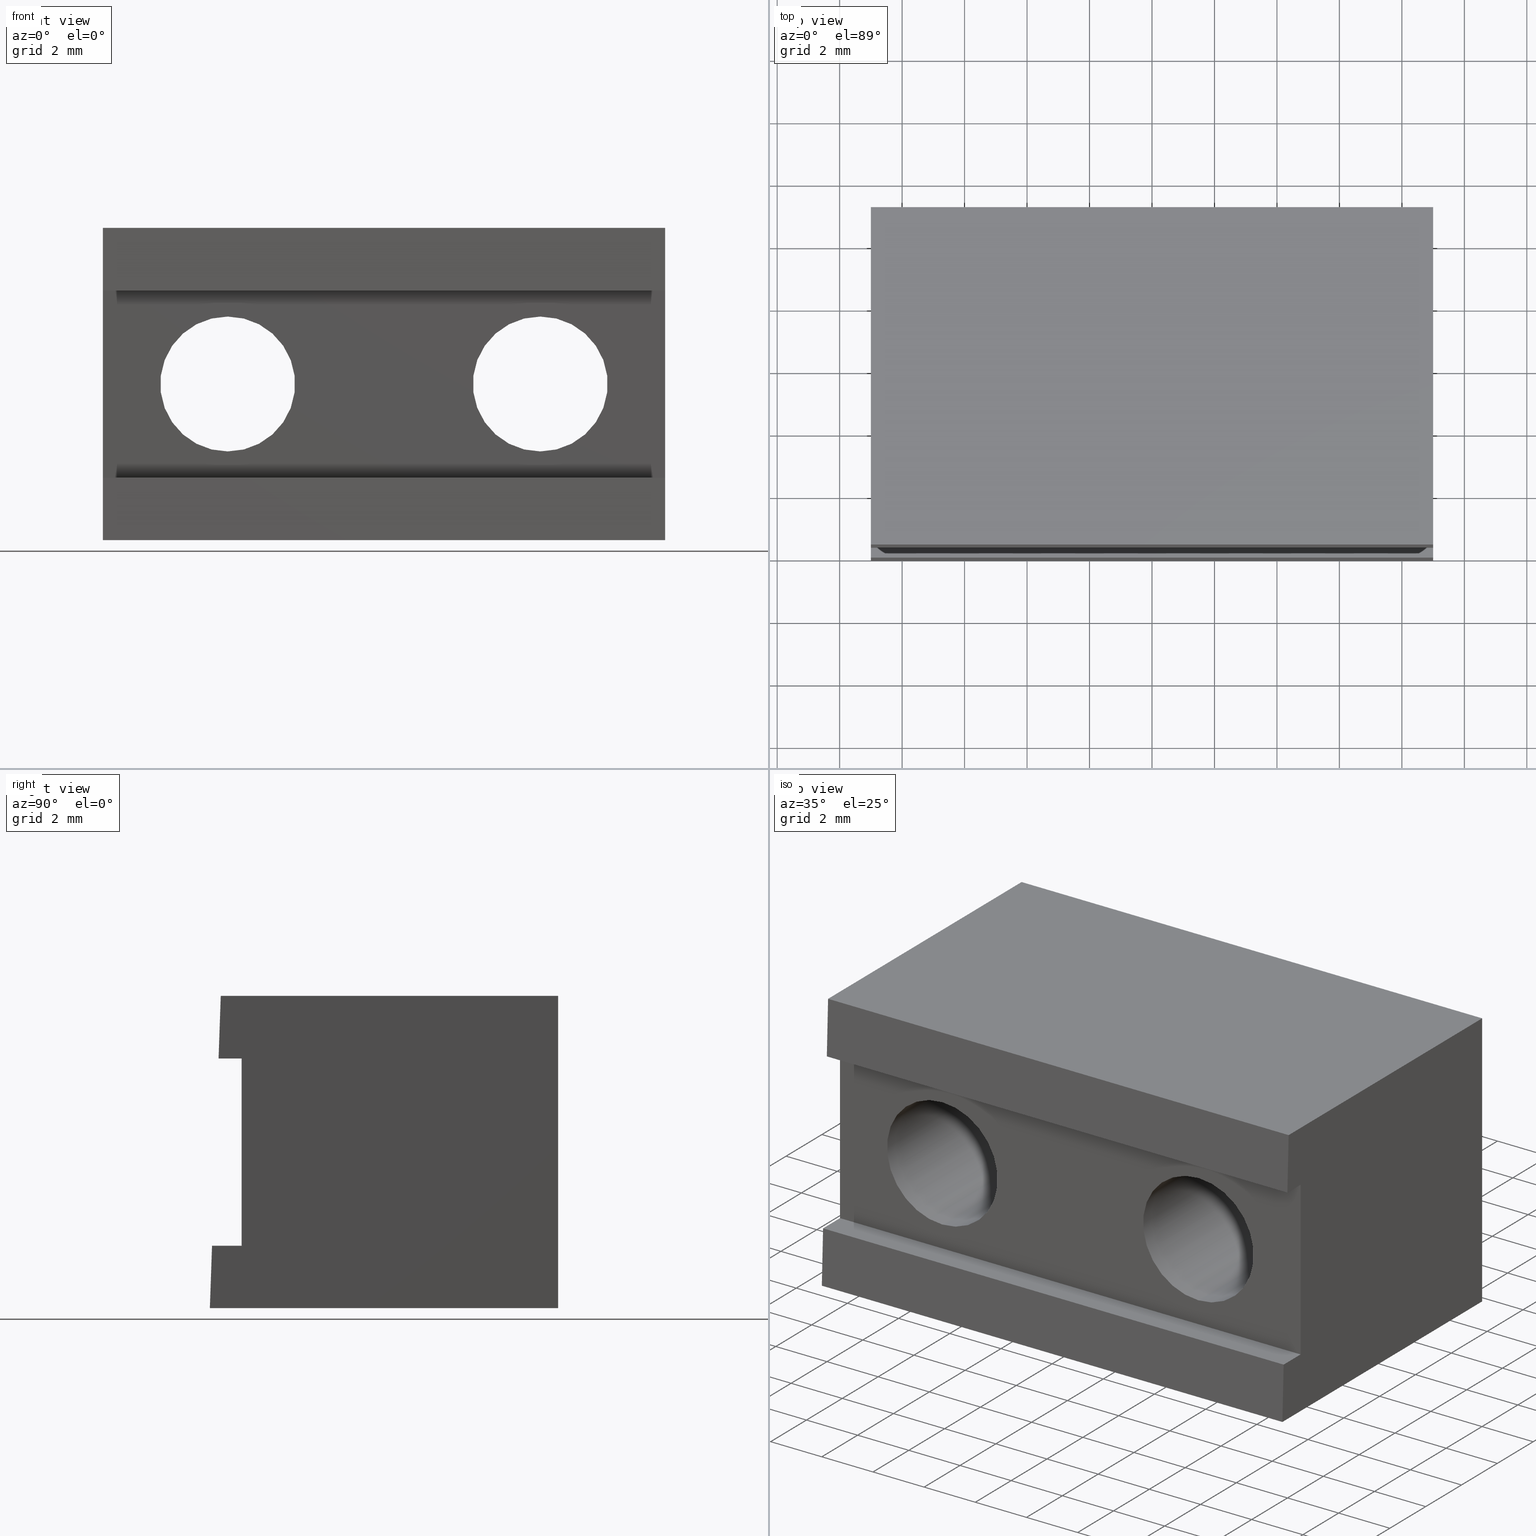
[diagram: canonical four-view strip — front | top / right | iso, engineering-drawing reading convention]
A machine part, canonical four-view strip (front | top / right | iso — engineering-drawing reading convention). The complete STEP part file that produces these views, byte-faithful:
ISO-10303-21;
HEADER;
FILE_DESCRIPTION (( 'STEP AP203' ),
    '1' );
FILE_NAME ('D020314-v2_aLIGO_SUS_HSTS_Lower Blade Clamp, Upper SIde, Angled 2.0.STEP',
    '2010-06-25T13:28:48',
    ( 'Dwayne Giardina' ),
    ( 'CA Institute of Technology' ),
    'SwSTEP 2.0',
    'SolidWorks 2009',
    '' );
FILE_SCHEMA (( 'CONFIG_CONTROL_DESIGN' ));
ENDSEC;

DATA;
#1 = PRODUCT ( 'D020314-v2_aLIGO_SUS_HSTS_Lower Blade Clamp, Upper SIde, Angled 2.0', 'D020314-v2_aLIGO_SUS_HSTS_Lower Blade Clamp, Upper SIde, Angled 2.0', '', ( #486 ) ) ;
#2 = PERSON ( 'UNSPECIFIED', 'UNSPECIFIED', 'UNSPECIFIED', ('UNSPECIFIED'), ('UNSPECIFIED'), ('UNSPECIFIED') ) ;
#3 = ORIENTED_EDGE ( 'NONE', *, *, #135, .F. ) ;
#4 = ORIENTED_EDGE ( 'NONE', *, *, #345, .F. ) ;
#5 = ORIENTED_EDGE ( 'NONE', *, *, #141, .T. ) ;
#6 = ORIENTED_EDGE ( 'NONE', *, *, #163, .T. ) ;
#7 = ORIENTED_EDGE ( 'NONE', *, *, #171, .T. ) ;
#8 = ORIENTED_EDGE ( 'NONE', *, *, #157, .T. ) ;
#9 = VECTOR ( 'NONE', #320, 39.37007874015748100 ) ;
#10 = ORIENTED_EDGE ( 'NONE', *, *, #180, .F. ) ;
#11 = EDGE_LOOP ( 'NONE', ( #6, #72, #110, #5 ) ) ;
#12 = ORIENTED_EDGE ( 'NONE', *, *, #187, .T. ) ;
#13 = ORIENTED_EDGE ( 'NONE', *, *, #342, .F. ) ;
#14 = VECTOR ( 'NONE', #360, 39.37007874015748100 ) ;
#15 = ORIENTED_EDGE ( 'NONE', *, *, #340, .F. ) ;
#16 = ORIENTED_EDGE ( 'NONE', *, *, #148, .T. ) ;
#17 = LINE ( 'NONE', #351, #26 ) ;
#18 = VECTOR ( 'NONE', #507, 39.37007874015748100 ) ;
#19 = ORIENTED_EDGE ( 'NONE', *, *, #170, .T. ) ;
#20 = ORIENTED_EDGE ( 'NONE', *, *, #152, .F. ) ;
#21 = ORIENTED_EDGE ( 'NONE', *, *, #197, .F. ) ;
#22 = ORIENTED_EDGE ( 'NONE', *, *, #346, .F. ) ;
#23 = EDGE_LOOP ( 'NONE', ( #94, #107 ) ) ;
#24 = EDGE_LOOP ( 'NONE', ( #30, #27, #104, #101 ) ) ;
#25 = ORIENTED_EDGE ( 'NONE', *, *, #342, .T. ) ;
#26 = VECTOR ( 'NONE', #352, 39.37007874015748100 ) ;
#27 = ORIENTED_EDGE ( 'NONE', *, *, #345, .T. ) ;
#28 = ORIENTED_EDGE ( 'NONE', *, *, #162, .F. ) ;
#29 = ORIENTED_EDGE ( 'NONE', *, *, #187, .F. ) ;
#30 = ORIENTED_EDGE ( 'NONE', *, *, #162, .T. ) ;
#31 = VECTOR ( 'NONE', #327, 39.37007874015748100 ) ;
#32 = VECTOR ( 'NONE', #338, 39.37007874015748100 ) ;
#33 = EDGE_LOOP ( 'NONE', ( #74, #105, #41, #128 ) ) ;
#34 = CLOSED_SHELL ( 'NONE', ( #299, #303, #301, #289, #291, #300, #292, #297, #302, #298, #296, #293, #294, #295 ) ) ;
#35 = ORIENTED_EDGE ( 'NONE', *, *, #142, .T. ) ;
#36 = ORIENTED_EDGE ( 'NONE', *, *, #189, .F. ) ;
#37 = EDGE_LOOP ( 'NONE', ( #47, #43, #3, #69, #56, #28, #48, #121 ) ) ;
#38 = CIRCLE ( 'NONE', #173, 0.08499999999999999200 ) ;
#39 = ORIENTED_EDGE ( 'NONE', *, *, #341, .T. ) ;
#40 = ORIENTED_EDGE ( 'NONE', *, *, #156, .T. ) ;
#41 = ORIENTED_EDGE ( 'NONE', *, *, #193, .T. ) ;
#42 = ORIENTED_EDGE ( 'NONE', *, *, #341, .F. ) ;
#43 = ORIENTED_EDGE ( 'NONE', *, *, #148, .F. ) ;
#44 = VECTOR ( 'NONE', #364, 39.37007874015748100 ) ;
#45 = ORIENTED_EDGE ( 'NONE', *, *, #141, .F. ) ;
#46 = ORIENTED_EDGE ( 'NONE', *, *, #166, .F. ) ;
#47 = ORIENTED_EDGE ( 'NONE', *, *, #184, .F. ) ;
#48 = ORIENTED_EDGE ( 'NONE', *, *, #170, .F. ) ;
#49 = CIRCLE ( 'NONE', #140, 0.08499999999999997800 ) ;
#50 = EDGE_LOOP ( 'NONE', ( #35, #81, #66, #4 ) ) ;
#51 = EDGE_LOOP ( 'NONE', ( #97, #40, #112, #42 ) ) ;
#52 = EDGE_LOOP ( 'NONE', ( #70, #22 ) ) ;
#53 = VECTOR ( 'NONE', #363, 39.37007874015748100 ) ;
#54 = LINE ( 'NONE', #506, #18 ) ;
#55 = LINE ( 'NONE', #365, #44 ) ;
#56 = ORIENTED_EDGE ( 'NONE', *, *, #142, .F. ) ;
#57 = ORIENTED_EDGE ( 'NONE', *, *, #171, .F. ) ;
#58 = CIRCLE ( 'NONE', #136, 0.08499999999999999200 ) ;
#59 = EDGE_LOOP ( 'NONE', ( #19, #124, #113, #45 ) ) ;
#60 = LINE ( 'NONE', #520, #79 ) ;
#61 = VECTOR ( 'NONE', #380, 39.37007874015748100 ) ;
#62 = ORIENTED_EDGE ( 'NONE', *, *, #344, .F. ) ;
#63 = ORIENTED_EDGE ( 'NONE', *, *, #340, .T. ) ;
#64 = ORIENTED_EDGE ( 'NONE', *, *, #184, .T. ) ;
#65 = ORIENTED_EDGE ( 'NONE', *, *, #163, .F. ) ;
#66 = ORIENTED_EDGE ( 'NONE', *, *, #134, .T. ) ;
#67 = ORIENTED_EDGE ( 'NONE', *, *, #347, .F. ) ;
#68 = ORIENTED_EDGE ( 'NONE', *, *, #152, .T. ) ;
#69 = ORIENTED_EDGE ( 'NONE', *, *, #191, .T. ) ;
#70 = ORIENTED_EDGE ( 'NONE', *, *, #154, .F. ) ;
#71 = LINE ( 'NONE', #517, #123 ) ;
#72 = ORIENTED_EDGE ( 'NONE', *, *, #155, .T. ) ;
#73 = LINE ( 'NONE', #358, #77 ) ;
#74 = ORIENTED_EDGE ( 'NONE', *, *, #166, .T. ) ;
#75 = LINE ( 'NONE', #308, #32 ) ;
#76 = LINE ( 'NONE', #381, #84 ) ;
#77 = VECTOR ( 'NONE', #354, 39.37007874015748100 ) ;
#78 = EDGE_LOOP ( 'NONE', ( #16, #68, #25, #63 ) ) ;
#79 = VECTOR ( 'NONE', #519, 39.37007874015748100 ) ;
#80 = LINE ( 'NONE', #353, #53 ) ;
#81 = ORIENTED_EDGE ( 'NONE', *, *, #347, .T. ) ;
#82 = VECTOR ( 'NONE', #335, 39.37007874015748100 ) ;
#83 = LINE ( 'NONE', #321, #85 ) ;
#84 = VECTOR ( 'NONE', #382, 39.37007874015748100 ) ;
#85 = VECTOR ( 'NONE', #322, 39.37007874015748100 ) ;
#86 = LINE ( 'NONE', #326, #82 ) ;
#87 = LINE ( 'NONE', #379, #61 ) ;
#88 = ORIENTED_EDGE ( 'NONE', *, *, #177, .F. ) ;
#89 = ORIENTED_EDGE ( 'NONE', *, *, #155, .F. ) ;
#90 = ORIENTED_EDGE ( 'NONE', *, *, #134, .F. ) ;
#91 = ORIENTED_EDGE ( 'NONE', *, *, #135, .T. ) ;
#92 = ORIENTED_EDGE ( 'NONE', *, *, #193, .F. ) ;
#93 = LINE ( 'NONE', #339, #9 ) ;
#94 = ORIENTED_EDGE ( 'NONE', *, *, #343, .F. ) ;
#95 = LINE ( 'NONE', #324, #102 ) ;
#96 = LINE ( 'NONE', #511, #275 ) ;
#97 = ORIENTED_EDGE ( 'NONE', *, *, #343, .T. ) ;
#98 = EDGE_LOOP ( 'NONE', ( #67, #129, #57, #10 ) ) ;
#99 = EDGE_LOOP ( 'NONE', ( #90, #119, #118, #13, #29, #65, #21, #111 ) ) ;
#100 = EDGE_LOOP ( 'NONE', ( #36, #92 ) ) ;
#101 = ORIENTED_EDGE ( 'NONE', *, *, #159, .F. ) ;
#102 = VECTOR ( 'NONE', #329, 39.37007874015748100 ) ;
#103 = ORIENTED_EDGE ( 'NONE', *, *, #160, .F. ) ;
#104 = ORIENTED_EDGE ( 'NONE', *, *, #161, .T. ) ;
#105 = ORIENTED_EDGE ( 'NONE', *, *, #344, .T. ) ;
#106 = ORIENTED_EDGE ( 'NONE', *, *, #156, .F. ) ;
#107 = ORIENTED_EDGE ( 'NONE', *, *, #157, .F. ) ;
#108 = ORIENTED_EDGE ( 'NONE', *, *, #177, .T. ) ;
#109 = EDGE_LOOP ( 'NONE', ( #62, #108, #127, #126 ) ) ;
#110 = ORIENTED_EDGE ( 'NONE', *, *, #196, .T. ) ;
#111 = ORIENTED_EDGE ( 'NONE', *, *, #161, .F. ) ;
#112 = ORIENTED_EDGE ( 'NONE', *, *, #346, .T. ) ;
#113 = ORIENTED_EDGE ( 'NONE', *, *, #197, .T. ) ;
#114 = EDGE_LOOP ( 'NONE', ( #64, #89, #12, #20 ) ) ;
#115 = LINE ( 'NONE', #359, #14 ) ;
#116 = LINE ( 'NONE', #323, #31 ) ;
#117 = EDGE_LOOP ( 'NONE', ( #106, #8, #39, #122 ) ) ;
#118 = ORIENTED_EDGE ( 'NONE', *, *, #160, .T. ) ;
#119 = ORIENTED_EDGE ( 'NONE', *, *, #180, .T. ) ;
#120 = EDGE_LOOP ( 'NONE', ( #15, #103, #7, #91 ) ) ;
#121 = ORIENTED_EDGE ( 'NONE', *, *, #196, .F. ) ;
#122 = ORIENTED_EDGE ( 'NONE', *, *, #154, .T. ) ;
#123 = VECTOR ( 'NONE', #503, 39.37007874015748100 ) ;
#124 = ORIENTED_EDGE ( 'NONE', *, *, #159, .T. ) ;
#125 = EDGE_LOOP ( 'NONE', ( #46, #88 ) ) ;
#126 = ORIENTED_EDGE ( 'NONE', *, *, #189, .T. ) ;
#127 = ORIENTED_EDGE ( 'NONE', *, *, #164, .T. ) ;
#128 = ORIENTED_EDGE ( 'NONE', *, *, #164, .F. ) ;
#129 = ORIENTED_EDGE ( 'NONE', *, *, #191, .F. ) ;
#130 = PRODUCT_DEFINITION_SHAPE ( 'NONE', 'NONE',  #169 ) ;
#131 = DESIGN_CONTEXT ( 'detailed design', #492, 'design' ) ;
#132 = CC_DESIGN_PERSON_AND_ORGANIZATION_ASSIGNMENT ( #237, #489, ( #1 ) ) ;
#133 = AXIS2_PLACEMENT_3D ( 'NONE', #447, #449, #448 ) ;
#134 = EDGE_CURVE ( 'NONE', #314, #318, #75, .T. ) ;
#135 = EDGE_CURVE ( 'NONE', #304, #315, #93, .T. ) ;
#136 = AXIS2_PLACEMENT_3D ( 'NONE', #518, #361, #362 ) ;
#137 = AXIS2_PLACEMENT_3D ( 'NONE', #458, #460, #461 ) ;
#138 = AXIS2_PLACEMENT_3D ( 'NONE', #466, #429, #477 ) ;
#139 = APPROVAL ( #497, 'UNSPECIFIED' ) ;
#140 = AXIS2_PLACEMENT_3D ( 'NONE', #513, #504, #505 ) ;
#141 = EDGE_CURVE ( 'NONE', #317, #325, #83, .T. ) ;
#142 = EDGE_CURVE ( 'NONE', #336, #311, #116, .T. ) ;
#143 = CC_DESIGN_APPROVAL ( #144, ( #252 ) ) ;
#144 = APPROVAL ( #485, 'UNSPECIFIED' ) ;
#145 = CC_DESIGN_DATE_AND_TIME_ASSIGNMENT ( #242, #487, ( #252 ) ) ;
#146 = AXIS2_PLACEMENT_3D ( 'NONE', #441, #434, #436 ) ;
#147 = AXIS2_PLACEMENT_3D ( 'NONE', #500, #514, #377 ) ;
#148 = EDGE_CURVE ( 'NONE', #315, #306, #86, .T. ) ;
#149 = AXIS2_PLACEMENT_3D ( 'NONE', #374, #376, #444 ) ;
#150 = AXIS2_PLACEMENT_3D ( 'NONE', #440, #368, #375 ) ;
#151 = AXIS2_PLACEMENT_3D ( 'NONE', #395, #398, #397 ) ;
#152 = EDGE_CURVE ( 'NONE', #306, #316, #95, .T. ) ;
#153 = AXIS2_PLACEMENT_3D ( 'NONE', #378, #479, #480 ) ;
#154 = EDGE_CURVE ( 'NONE', #319, #332, #58, .T. ) ;
#155 = EDGE_CURVE ( 'NONE', #331, #310, #115, .T. ) ;
#156 = EDGE_CURVE ( 'NONE', #330, #332, #17, .T. ) ;
#157 = EDGE_CURVE ( 'NONE', #330, #309, #38, .T. ) ;
#158 = PRODUCT_DEFINITION_FORMATION_WITH_SPECIFIED_SOURCE ( 'ANY', '', #1, .NOT_KNOWN. ) ;
#159 = EDGE_CURVE ( 'NONE', #328, #312, #80, .T. ) ;
#160 = EDGE_CURVE ( 'NONE', #313, #307, #55, .T. ) ;
#161 = EDGE_CURVE ( 'NONE', #318, #312, #60, .T. ) ;
#162 = EDGE_CURVE ( 'NONE', #328, #336, #71, .T. ) ;
#163 = EDGE_CURVE ( 'NONE', #325, #331, #87, .T. ) ;
#164 = EDGE_CURVE ( 'NONE', #334, #337, #76, .T. ) ;
#165 = AXIS2_PLACEMENT_3D ( 'NONE', #433, #430, #442 ) ;
#166 = EDGE_CURVE ( 'NONE', #334, #333, #49, .T. ) ;
#167 = CC_DESIGN_SECURITY_CLASSIFICATION ( #252, ( #158 ) ) ;
#168 = PRODUCT_RELATED_PRODUCT_CATEGORY ( 'detail', '', ( #1 ) ) ;
#169 = PRODUCT_DEFINITION ( 'UNKNOWN', '', #158, #131 ) ;
#170 = EDGE_CURVE ( 'NONE', #317, #328, #54, .T. ) ;
#171 = EDGE_CURVE ( 'NONE', #313, #304, #73, .T. ) ;
#172 = AXIS2_PLACEMENT_3D ( 'NONE', #431, #432, #439 ) ;
#173 = AXIS2_PLACEMENT_3D ( 'NONE', #357, #356, #355 ) ;
#174 = CC_DESIGN_DATE_AND_TIME_ASSIGNMENT ( #221, #496, ( #169 ) ) ;
#175 = AXIS2_PLACEMENT_3D ( 'NONE', #392, #386, #391 ) ;
#176 = CC_DESIGN_APPROVAL ( #199, ( #158 ) ) ;
#177 = EDGE_CURVE ( 'NONE', #333, #334, #274, .T. ) ;
#178 = AXIS2_PLACEMENT_3D ( 'NONE', #404, #403, #401 ) ;
#179 = CC_DESIGN_PERSON_AND_ORGANIZATION_ASSIGNMENT ( #262, #498, ( #169 ) ) ;
#180 = EDGE_CURVE ( 'NONE', #314, #313, #96, .T. ) ;
#181 = AXIS2_PLACEMENT_3D ( 'NONE', #437, #438, #463 ) ;
#182 = AXIS2_PLACEMENT_3D ( 'NONE', #452, #453, #451 ) ;
#183 = AXIS2_PLACEMENT_3D ( 'NONE', #508, #509, #510 ) ;
#184 = EDGE_CURVE ( 'NONE', #306, #310, #272, .T. ) ;
#185 = AXIS2_PLACEMENT_3D ( 'NONE', #367, #459, #455 ) ;
#186 = CC_DESIGN_APPROVAL ( #139, ( #169 ) ) ;
#187 = EDGE_CURVE ( 'NONE', #331, #316, #271, .T. ) ;
#188 = AXIS2_PLACEMENT_3D ( 'NONE', #445, #456, #454 ) ;
#189 = EDGE_CURVE ( 'NONE', #337, #305, #241, .T. ) ;
#190 = CC_DESIGN_PERSON_AND_ORGANIZATION_ASSIGNMENT ( #247, #493, ( #158 ) ) ;
#191 = EDGE_CURVE ( 'NONE', #304, #311, #210, .T. ) ;
#192 = AXIS2_PLACEMENT_3D ( 'NONE', #369, #370, #372 ) ;
#193 = EDGE_CURVE ( 'NONE', #305, #337, #286, .T. ) ;
#194 = CC_DESIGN_PERSON_AND_ORGANIZATION_ASSIGNMENT ( #201, #488, ( #252 ) ) ;
#195 = CC_DESIGN_PERSON_AND_ORGANIZATION_ASSIGNMENT ( #204, #491, ( #158 ) ) ;
#196 = EDGE_CURVE ( 'NONE', #310, #317, #243, .T. ) ;
#197 = EDGE_CURVE ( 'NONE', #312, #325, #232, .T. ) ;
#198 = AXIS2_PLACEMENT_3D ( 'NONE', #420, #423, #419 ) ;
#199 = APPROVAL ( #495, 'UNSPECIFIED' ) ;
#200 = LOCAL_TIME ( 8, 28, 48.00000000000000000, #235 ) ;
#201 = PERSON_AND_ORGANIZATION ( #2, #280 ) ;
#202 = LINE ( 'NONE', #408, #223 ) ;
#203 = FACE_OUTER_BOUND ( 'NONE', #50, .T. ) ;
#204 = PERSON_AND_ORGANIZATION ( #2, #280 ) ;
#205 = FACE_OUTER_BOUND ( 'NONE', #109, .T. ) ;
#206 = LINE ( 'NONE', #413, #257 ) ;
#207 = CALENDAR_DATE ( 2010, 25, 6 ) ;
#208 = CALENDAR_DATE ( 2010, 25, 6 ) ;
#209 = LOCAL_TIME ( 8, 28, 48.00000000000000000, #244 ) ;
#210 = LINE ( 'NONE', #388, #248 ) ;
#211 = LINE ( 'NONE', #409, #246 ) ;
#212 = LOCAL_TIME ( 8, 28, 48.00000000000000000, #216 ) ;
#213 = LOCAL_TIME ( 8, 28, 48.00000000000000000, #239 ) ;
#214 = VECTOR ( 'NONE', #515, 39.37007874015748100 ) ;
#215 = CYLINDRICAL_SURFACE ( 'NONE', #165, 0.08499999999999997800 ) ;
#216 = COORDINATED_UNIVERSAL_TIME_OFFSET ( 6, 0, .BEHIND. ) ;
#217 = CALENDAR_DATE ( 2010, 25, 6 ) ;
#218 = DATE_AND_TIME ( #249, #212 ) ;
#219 = APPROVAL_PERSON_ORGANIZATION ( #234, #144, #483 ) ;
#220 = PERSON_AND_ORGANIZATION ( #2, #280 ) ;
#221 = DATE_AND_TIME ( #253, #200 ) ;
#222 = DATE_AND_TIME ( #208, #269 ) ;
#223 = VECTOR ( 'NONE', #406, 39.37007874015748100 ) ;
#224 = FACE_OUTER_BOUND ( 'NONE', #33, .T. ) ;
#225 = APPROVAL_DATE_TIME ( #222, #139 ) ;
#226 = CIRCLE ( 'NONE', #175, 0.08499999999999999200 ) ;
#227 = FACE_BOUND ( 'NONE', #100, .T. ) ;
#228 = FACE_BOUND ( 'NONE', #23, .T. ) ;
#229 = LINE ( 'NONE', #400, #254 ) ;
#230 = FACE_OUTER_BOUND ( 'NONE', #51, .T. ) ;
#231 = CYLINDRICAL_SURFACE ( 'NONE', #133, 0.08499999999999997800 ) ;
#232 = LINE ( 'NONE', #410, #255 ) ;
#233 = DATE_AND_TIME ( #207, #209 ) ;
#234 = PERSON_AND_ORGANIZATION ( #2, #280 ) ;
#235 = COORDINATED_UNIVERSAL_TIME_OFFSET ( 6, 0, .BEHIND. ) ;
#236 =( GEOMETRIC_REPRESENTATION_CONTEXT ( 3 ) GLOBAL_UNCERTAINTY_ASSIGNED_CONTEXT ( ( #349 ) ) GLOBAL_UNIT_ASSIGNED_CONTEXT ( ( #384, #383, #450 ) ) REPRESENTATION_CONTEXT ( 'NONE', 'WORKASPACE' ) );
#237 = PERSON_AND_ORGANIZATION ( #2, #280 ) ;
#238 = APPROVAL_PERSON_ORGANIZATION ( #281, #139, #499 ) ;
#239 = COORDINATED_UNIVERSAL_TIME_OFFSET ( 6, 0, .BEHIND. ) ;
#240 = APPROVAL_PERSON_ORGANIZATION ( #220, #199, #484 ) ;
#241 = CIRCLE ( 'NONE', #147, 0.08499999999999997800 ) ;
#242 = DATE_AND_TIME ( #217, #213 ) ;
#243 = LINE ( 'NONE', #405, #266 ) ;
#244 = COORDINATED_UNIVERSAL_TIME_OFFSET ( 6, 0, .BEHIND. ) ;
#245 = FACE_OUTER_BOUND ( 'NONE', #37, .T. ) ;
#246 = VECTOR ( 'NONE', #402, 39.37007874015748100 ) ;
#247 = PERSON_AND_ORGANIZATION ( #2, #280 ) ;
#248 = VECTOR ( 'NONE', #387, 39.37007874015748100 ) ;
#249 = CALENDAR_DATE ( 2010, 25, 6 ) ;
#250 = FACE_OUTER_BOUND ( 'NONE', #98, .T. ) ;
#251 = CYLINDRICAL_SURFACE ( 'NONE', #192, 0.08499999999999999200 ) ;
#252 = SECURITY_CLASSIFICATION ( '', '', #490 ) ;
#253 = CALENDAR_DATE ( 2010, 25, 6 ) ;
#254 = VECTOR ( 'NONE', #399, 39.37007874015748100 ) ;
#255 = VECTOR ( 'NONE', #412, 39.37007874015748100 ) ;
#256 = APPROVAL_DATE_TIME ( #218, #199 ) ;
#257 = VECTOR ( 'NONE', #411, 39.37007874015748100 ) ;
#258 = CYLINDRICAL_SURFACE ( 'NONE', #181, 0.08499999999999999200 ) ;
#259 = FACE_OUTER_BOUND ( 'NONE', #24, .T. ) ;
#260 = APPROVAL_DATE_TIME ( #233, #144 ) ;
#261 = FACE_OUTER_BOUND ( 'NONE', #11, .T. ) ;
#262 = PERSON_AND_ORGANIZATION ( #2, #280 ) ;
#263 = FACE_OUTER_BOUND ( 'NONE', #78, .T. ) ;
#264 = VECTOR ( 'NONE', #389, 39.37007874015748100 ) ;
#265 = COORDINATED_UNIVERSAL_TIME_OFFSET ( 6, 0, .BEHIND. ) ;
#266 = VECTOR ( 'NONE', #407, 39.37007874015748100 ) ;
#267 = VECTOR ( 'NONE', #393, 39.37007874015748100 ) ;
#268 = SHAPE_DEFINITION_REPRESENTATION ( #130, #350 ) ;
#269 = LOCAL_TIME ( 8, 28, 48.00000000000000000, #265 ) ;
#270 = FACE_OUTER_BOUND ( 'NONE', #117, .T. ) ;
#271 = LINE ( 'NONE', #516, #214 ) ;
#272 = LINE ( 'NONE', #502, #273 ) ;
#273 = VECTOR ( 'NONE', #501, 39.37007874015748100 ) ;
#274 = CIRCLE ( 'NONE', #183, 0.08499999999999997800 ) ;
#275 = VECTOR ( 'NONE', #512, 39.37007874015748100 ) ;
#276 = LINE ( 'NONE', #396, #267 ) ;
#277 = LINE ( 'NONE', #390, #264 ) ;
#278 = FACE_OUTER_BOUND ( 'NONE', #114, .T. ) ;
#279 = FACE_OUTER_BOUND ( 'NONE', #99, .T. ) ;
#280 = ORGANIZATION ( 'UNSPECIFIED', 'UNSPECIFIED', '' ) ;
#281 = PERSON_AND_ORGANIZATION ( #2, #280 ) ;
#282 = CIRCLE ( 'NONE', #178, 0.08499999999999999200 ) ;
#283 = FACE_OUTER_BOUND ( 'NONE', #59, .T. ) ;
#284 = FACE_OUTER_BOUND ( 'NONE', #120, .T. ) ;
#285 = LENGTH_MEASURE_WITH_UNIT ( LENGTH_MEASURE( 0.02539999999999999900 ), #385 );
#286 = CIRCLE ( 'NONE', #151, 0.08499999999999997800 ) ;
#287 = FACE_BOUND ( 'NONE', #52, .T. ) ;
#288 = FACE_BOUND ( 'NONE', #125, .T. ) ;
#289 = ADVANCED_FACE ( 'NONE', ( #287, #227, #284 ), #414, .T. ) ;
#290 = DIMENSIONAL_EXPONENTS ( 1.000000000000000000, 0.0000000000000000000, 0.0000000000000000000, 0.0000000000000000000, 0.0000000000000000000, 0.0000000000000000000, 0.0000000000000000000 ) ;
#291 = ADVANCED_FACE ( 'NONE', ( #279 ), #394, .T. ) ;
#292 = ADVANCED_FACE ( 'NONE', ( #263 ), #475, .F. ) ;
#293 = ADVANCED_FACE ( 'NONE', ( #259 ), #435, .F. ) ;
#294 = ADVANCED_FACE ( 'NONE', ( #203 ), #371, .F. ) ;
#295 = ADVANCED_FACE ( 'NONE', ( #278 ), #457, .F. ) ;
#296 = ADVANCED_FACE ( 'NONE', ( #261 ), #366, .F. ) ;
#297 = ADVANCED_FACE ( 'NONE', ( #205 ), #231, .F. ) ;
#298 = ADVANCED_FACE ( 'NONE', ( #283, #228, #288 ), #446, .F. ) ;
#299 = ADVANCED_FACE ( 'NONE', ( #230 ), #251, .F. ) ;
#300 = ADVANCED_FACE ( 'NONE', ( #250 ), #373, .T. ) ;
#301 = ADVANCED_FACE ( 'NONE', ( #245 ), #443, .T. ) ;
#302 = ADVANCED_FACE ( 'NONE', ( #270 ), #258, .F. ) ;
#303 = ADVANCED_FACE ( 'NONE', ( #224 ), #215, .F. ) ;
#304 = VERTEX_POINT ( 'NONE', #462 ) ;
#305 = VERTEX_POINT ( 'NONE', #476 ) ;
#306 = VERTEX_POINT ( 'NONE', #474 ) ;
#307 = VERTEX_POINT ( 'NONE', #469 ) ;
#308 = CARTESIAN_POINT ( 'NONE',  ( 0.3543307086614173000, -2.073152488754191300E-020, -0.3937007900000000200 ) ) ;
#309 = VERTEX_POINT ( 'NONE', #470 ) ;
#310 = VERTEX_POINT ( 'NONE', #478 ) ;
#311 = VERTEX_POINT ( 'NONE', #467 ) ;
#312 = VERTEX_POINT ( 'NONE', #464 ) ;
#313 = VERTEX_POINT ( 'NONE', #465 ) ;
#314 = VERTEX_POINT ( 'NONE', #471 ) ;
#315 = VERTEX_POINT ( 'NONE', #428 ) ;
#316 = VERTEX_POINT ( 'NONE', #468 ) ;
#317 = VERTEX_POINT ( 'NONE', #472 ) ;
#318 = VERTEX_POINT ( 'NONE', #473 ) ;
#319 = VERTEX_POINT ( 'NONE', #427 ) ;
#320 = DIRECTION ( 'NONE',  ( 0.0000000000000000000, 0.0000000000000000000, 1.000000000000000000 ) ) ;
#321 = CARTESIAN_POINT ( 'NONE',  ( -0.7156692913385827000, 0.03999999999999996600, -0.07900000000000000100 ) ) ;
#322 = DIRECTION ( 'NONE',  ( 1.000000000000000000, -0.0000000000000000000, -0.0000000000000000000 ) ) ;
#323 = CARTESIAN_POINT ( 'NONE',  ( -0.3543307086614173600, -1.101872990602363400E-016, -0.3937007900000000200 ) ) ;
#324 = CARTESIAN_POINT ( 'NONE',  ( -0.9156692913385827700, 0.01374833453630595000, 0.0000000000000000000 ) ) ;
#325 = VERTEX_POINT ( 'NONE', #426 ) ;
#326 = CARTESIAN_POINT ( 'NONE',  ( -0.3543307086614173600, -4.339156371811573700E-017, 0.0000000000000000000 ) ) ;
#327 = DIRECTION ( 'NONE',  ( 0.0000000000000000000, -0.03489949670249379400, -0.9993908270190959800 ) ) ;
#328 = VERTEX_POINT ( 'NONE', #425 ) ;
#329 = DIRECTION ( 'NONE',  ( 1.000000000000000000, 1.555722092063930900E-016, -0.0000000000000000000 ) ) ;
#330 = VERTEX_POINT ( 'NONE', #424 ) ;
#331 = VERTEX_POINT ( 'NONE', #422 ) ;
#332 = VERTEX_POINT ( 'NONE', #421 ) ;
#333 = VERTEX_POINT ( 'NONE', #418 ) ;
#334 = VERTEX_POINT ( 'NONE', #417 ) ;
#335 = DIRECTION ( 'NONE',  ( -0.0000000000000000000, -1.000000000000000000, -0.0000000000000000000 ) ) ;
#336 = VERTEX_POINT ( 'NONE', #416 ) ;
#337 = VERTEX_POINT ( 'NONE', #415 ) ;
#338 = DIRECTION ( 'NONE',  ( 0.0000000000000000000, 0.03489949670249379400, 0.9993908270190959800 ) ) ;
#339 = CARTESIAN_POINT ( 'NONE',  ( -0.3543307086614173600, 0.4390000000000000000, -0.3937007900000000200 ) ) ;
#340 = EDGE_CURVE ( 'NONE', #307, #315, #206, .T. ) ;
#341 = EDGE_CURVE ( 'NONE', #309, #319, #211, .T. ) ;
#342 = EDGE_CURVE ( 'NONE', #316, #307, #202, .T. ) ;
#343 = EDGE_CURVE ( 'NONE', #309, #330, #282, .T. ) ;
#344 = EDGE_CURVE ( 'NONE', #333, #305, #229, .T. ) ;
#345 = EDGE_CURVE ( 'NONE', #336, #318, #276, .T. ) ;
#346 = EDGE_CURVE ( 'NONE', #332, #319, #226, .T. ) ;
#347 = EDGE_CURVE ( 'NONE', #311, #314, #277, .T. ) ;
#348 = MANIFOLD_SOLID_BREP ( 'NONE', #34 ) ;
#349 = UNCERTAINTY_MEASURE_WITH_UNIT (LENGTH_MEASURE( 1.000000000000000100E-005 ), #384, 'distance_accuracy_value', 'NONE');
#350 = ADVANCED_BREP_SHAPE_REPRESENTATION ( 'D020314-v2_aLIGO_SUS_HSTS_Lower Blade Clamp, Upper SIde, Angled 2.0', ( #348, #153 ), #236 ) ;
#351 = CARTESIAN_POINT ( 'NONE',  ( 0.1969999999999999800, -0.5609999999999999400, -0.2818503950000000300 ) ) ;
#352 = DIRECTION ( 'NONE',  ( -0.0000000000000000000, 1.000000000000000000, -0.0000000000000000000 ) ) ;
#353 = CARTESIAN_POINT ( 'NONE',  ( -0.7156692913385827000, 0.03999999999999996600, -0.3150000000000000000 ) ) ;
#354 = DIRECTION ( 'NONE',  ( -1.000000000000000000, -0.0000000000000000000, -0.0000000000000000000 ) ) ;
#355 = DIRECTION ( 'NONE',  ( 0.0000000000000000000, 0.0000000000000000000, 1.000000000000000000 ) ) ;
#356 = DIRECTION ( 'NONE',  ( -0.0000000000000000000, -1.000000000000000000, -0.0000000000000000000 ) ) ;
#357 = CARTESIAN_POINT ( 'NONE',  ( 0.1969999999999999800, 0.03999999999999998000, -0.1968503950000000100 ) ) ;
#358 = CARTESIAN_POINT ( 'NONE',  ( -0.3543307086614173600, 0.4390000000000000000, -0.3937007900000000200 ) ) ;
#359 = CARTESIAN_POINT ( 'NONE',  ( -0.7156692913385827000, 0.01098959374645848200, -0.07899999999999998700 ) ) ;
#360 = DIRECTION ( 'NONE',  ( -1.000000000000000000, -1.555722092063931100E-016, 1.326506214763127600E-031 ) ) ;
#361 = DIRECTION ( 'NONE',  ( 0.0000000000000000000, 1.000000000000000000, 0.0000000000000000000 ) ) ;
#362 = DIRECTION ( 'NONE',  ( 0.0000000000000000000, 0.0000000000000000000, 1.000000000000000000 ) ) ;
#363 = DIRECTION ( 'NONE',  ( 1.000000000000000000, -0.0000000000000000000, -0.0000000000000000000 ) ) ;
#364 = DIRECTION ( 'NONE',  ( 0.0000000000000000000, 0.0000000000000000000, 1.000000000000000000 ) ) ;
#365 = CARTESIAN_POINT ( 'NONE',  ( 0.3543307086614172500, 0.4390000000000000000, -0.3937007900000000200 ) ) ;
#366 = PLANE ( 'NONE',  #185 ) ;
#367 = CARTESIAN_POINT ( 'NONE',  ( -0.7156692913385827000, 2.404707604070175800E-018, -0.07899999999999995900 ) ) ;
#368 = DIRECTION ( 'NONE',  ( -0.0000000000000000000, 0.0000000000000000000, -1.000000000000000000 ) ) ;
#369 = CARTESIAN_POINT ( 'NONE',  ( 0.1969999999999999800, -0.5609999999999999400, -0.1968503950000000100 ) ) ;
#370 = DIRECTION ( 'NONE',  ( -0.0000000000000000000, 1.000000000000000000, -0.0000000000000000000 ) ) ;
#371 = PLANE ( 'NONE',  #182 ) ;
#372 = DIRECTION ( 'NONE',  ( 0.0000000000000000000, 0.0000000000000000000, 1.000000000000000000 ) ) ;
#373 = PLANE ( 'NONE',  #149 ) ;
#374 = CARTESIAN_POINT ( 'NONE',  ( -0.3543307086614173600, 2.073152488754191300E-020, -0.3937007900000000200 ) ) ;
#375 = DIRECTION ( 'NONE',  ( -1.000000000000000000, 0.0000000000000000000, 0.0000000000000000000 ) ) ;
#376 = DIRECTION ( 'NONE',  ( 0.0000000000000000000, 0.0000000000000000000, -1.000000000000000000 ) ) ;
#377 = DIRECTION ( 'NONE',  ( 0.0000000000000000000, 0.0000000000000000000, -1.000000000000000000 ) ) ;
#378 = CARTESIAN_POINT ( 'NONE',  ( 0.0000000000000000000, 0.0000000000000000000, 0.0000000000000000000 ) ) ;
#379 = CARTESIAN_POINT ( 'NONE',  ( 0.3543307086614173000, 2.404707604070175800E-018, -0.07899999999999995900 ) ) ;
#380 = DIRECTION ( 'NONE',  ( -0.0000000000000000000, -1.000000000000000000, 8.537024980200829700E-016 ) ) ;
#381 = CARTESIAN_POINT ( 'NONE',  ( -0.1970000000000000400, -0.5609999999999999400, -0.1118503950000000100 ) ) ;
#382 = DIRECTION ( 'NONE',  ( -0.0000000000000000000, 1.000000000000000000, -0.0000000000000000000 ) ) ;
#383 =( NAMED_UNIT ( * ) PLANE_ANGLE_UNIT ( ) SI_UNIT ( $, .RADIAN. ) );
#384 =( CONVERSION_BASED_UNIT ( 'INCH', #285 ) LENGTH_UNIT ( ) NAMED_UNIT ( #290 ) );
#385 =( LENGTH_UNIT ( ) NAMED_UNIT ( * ) SI_UNIT ( $, .METRE. ) );
#386 = DIRECTION ( 'NONE',  ( 0.0000000000000000000, 1.000000000000000000, 0.0000000000000000000 ) ) ;
#387 = DIRECTION ( 'NONE',  ( -0.0000000000000000000, -1.000000000000000000, -0.0000000000000000000 ) ) ;
#388 = CARTESIAN_POINT ( 'NONE',  ( -0.3543307086614173600, -4.339156371811573700E-017, -0.3937007900000000200 ) ) ;
#389 = DIRECTION ( 'NONE',  ( 1.000000000000000000, -5.850897023817385100E-020, -0.0000000000000000000 ) ) ;
#390 = CARTESIAN_POINT ( 'NONE',  ( 0.3543307086614173000, -2.073152488754191300E-020, -0.3937007900000000200 ) ) ;
#391 = DIRECTION ( 'NONE',  ( 0.0000000000000000000, 0.0000000000000000000, 1.000000000000000000 ) ) ;
#392 = CARTESIAN_POINT ( 'NONE',  ( 0.1969999999999999800, 0.4390000000000000000, -0.1968503950000000100 ) ) ;
#393 = DIRECTION ( 'NONE',  ( 1.000000000000000000, 1.555722092063931100E-016, 0.0000000000000000000 ) ) ;
#394 = PLANE ( 'NONE',  #138 ) ;
#395 = CARTESIAN_POINT ( 'NONE',  ( -0.1970000000000000400, 0.4390000000000000000, -0.1968503949999999800 ) ) ;
#396 = CARTESIAN_POINT ( 'NONE',  ( -0.7156692913385827000, 0.002748292146407716900, -0.3150000000000000000 ) ) ;
#397 = DIRECTION ( 'NONE',  ( 0.0000000000000000000, 0.0000000000000000000, -1.000000000000000000 ) ) ;
#398 = DIRECTION ( 'NONE',  ( -0.0000000000000000000, 1.000000000000000000, 0.0000000000000000000 ) ) ;
#399 = DIRECTION ( 'NONE',  ( -0.0000000000000000000, 1.000000000000000000, -0.0000000000000000000 ) ) ;
#400 = CARTESIAN_POINT ( 'NONE',  ( -0.1970000000000000400, -0.5609999999999999400, -0.2818503949999999800 ) ) ;
#401 = DIRECTION ( 'NONE',  ( 0.0000000000000000000, 0.0000000000000000000, 1.000000000000000000 ) ) ;
#402 = DIRECTION ( 'NONE',  ( -0.0000000000000000000, 1.000000000000000000, -0.0000000000000000000 ) ) ;
#403 = DIRECTION ( 'NONE',  ( -0.0000000000000000000, -1.000000000000000000, -0.0000000000000000000 ) ) ;
#404 = CARTESIAN_POINT ( 'NONE',  ( 0.1969999999999999800, 0.03999999999999998000, -0.1968503950000000100 ) ) ;
#405 = CARTESIAN_POINT ( 'NONE',  ( -0.3543307086614173600, 2.252692868337779200E-016, -0.07899999999999995900 ) ) ;
#406 = DIRECTION ( 'NONE',  ( -1.555722092063931100E-016, 1.000000000000000000, -0.0000000000000000000 ) ) ;
#407 = DIRECTION ( 'NONE',  ( 0.0000000000000000000, 1.000000000000000000, -8.537024980200831700E-016 ) ) ;
#408 = CARTESIAN_POINT ( 'NONE',  ( 0.3543307086614172500, 0.4390000000000000000, 0.0000000000000000000 ) ) ;
#409 = CARTESIAN_POINT ( 'NONE',  ( 0.1969999999999999800, -0.5609999999999999400, -0.1118503950000000200 ) ) ;
#410 = CARTESIAN_POINT ( 'NONE',  ( 0.3543307086614173000, 0.03999999999999996600, -0.07900000000000000100 ) ) ;
#411 = DIRECTION ( 'NONE',  ( -1.000000000000000000, -0.0000000000000000000, -0.0000000000000000000 ) ) ;
#412 = DIRECTION ( 'NONE',  ( -0.0000000000000000000, -0.0000000000000000000, 1.000000000000000000 ) ) ;
#413 = CARTESIAN_POINT ( 'NONE',  ( -0.3543307086614173600, 0.4390000000000000000, 0.0000000000000000000 ) ) ;
#414 = PLANE ( 'NONE',  #198 ) ;
#415 = CARTESIAN_POINT ( 'NONE',  ( -0.1970000000000000400, 0.4390000000000000000, -0.1118503950000000100 ) ) ;
#416 = CARTESIAN_POINT ( 'NONE',  ( -0.3543307086614173600, 0.002748292146407772900, -0.3150000000000000000 ) ) ;
#417 = CARTESIAN_POINT ( 'NONE',  ( -0.1970000000000000400, 0.03999999999999998000, -0.1118503950000000100 ) ) ;
#418 = CARTESIAN_POINT ( 'NONE',  ( -0.1970000000000000400, 0.03999999999999998000, -0.2818503949999999800 ) ) ;
#419 = DIRECTION ( 'NONE',  ( 0.0000000000000000000, -0.0000000000000000000, 1.000000000000000000 ) ) ;
#420 = CARTESIAN_POINT ( 'NONE',  ( -0.3543307086614173600, 0.4390000000000000000, -0.3937007900000000200 ) ) ;
#421 = CARTESIAN_POINT ( 'NONE',  ( 0.1969999999999999800, 0.4390000000000000000, -0.2818503950000000300 ) ) ;
#422 = CARTESIAN_POINT ( 'NONE',  ( 0.3543307086614173600, 0.01098959374645864600, -0.07900000000000000100 ) ) ;
#423 = DIRECTION ( 'NONE',  ( 0.0000000000000000000, 1.000000000000000000, 0.0000000000000000000 ) ) ;
#424 = CARTESIAN_POINT ( 'NONE',  ( 0.1969999999999999800, 0.03999999999999998000, -0.2818503950000000300 ) ) ;
#425 = CARTESIAN_POINT ( 'NONE',  ( -0.3543307086614173600, 0.03999999999999996600, -0.3150000000000000000 ) ) ;
#426 = CARTESIAN_POINT ( 'NONE',  ( 0.3543307086614173000, 0.03999999999999996600, -0.07900000000000000100 ) ) ;
#427 = CARTESIAN_POINT ( 'NONE',  ( 0.1969999999999999800, 0.4390000000000000000, -0.1118503950000000200 ) ) ;
#428 = CARTESIAN_POINT ( 'NONE',  ( -0.3543307086614173600, 0.4390000000000000000, 0.0000000000000000000 ) ) ;
#429 = DIRECTION ( 'NONE',  ( 1.000000000000000000, 1.555722092063931100E-016, -0.0000000000000000000 ) ) ;
#430 = DIRECTION ( 'NONE',  ( -0.0000000000000000000, 1.000000000000000000, -0.0000000000000000000 ) ) ;
#431 = CARTESIAN_POINT ( 'NONE',  ( -0.3543307086614173600, 2.073152488754191300E-020, 0.0000000000000000000 ) ) ;
#432 = DIRECTION ( 'NONE',  ( 0.0000000000000000000, 0.0000000000000000000, -1.000000000000000000 ) ) ;
#433 = CARTESIAN_POINT ( 'NONE',  ( -0.1970000000000000400, -0.5609999999999999400, -0.1968503949999999800 ) ) ;
#434 = DIRECTION ( 'NONE',  ( -1.000000000000000000, 0.0000000000000000000, 0.0000000000000000000 ) ) ;
#435 = PLANE ( 'NONE',  #150 ) ;
#436 = DIRECTION ( 'NONE',  ( 0.0000000000000000000, 0.0000000000000000000, 1.000000000000000000 ) ) ;
#437 = CARTESIAN_POINT ( 'NONE',  ( 0.1969999999999999800, -0.5609999999999999400, -0.1968503950000000100 ) ) ;
#438 = DIRECTION ( 'NONE',  ( -0.0000000000000000000, 1.000000000000000000, -0.0000000000000000000 ) ) ;
#439 = DIRECTION ( 'NONE',  ( -1.000000000000000000, 0.0000000000000000000, -0.0000000000000000000 ) ) ;
#440 = CARTESIAN_POINT ( 'NONE',  ( -0.7156692913385827000, 0.03999999999999996600, -0.3150000000000000000 ) ) ;
#441 = CARTESIAN_POINT ( 'NONE',  ( -0.3543307086614173600, -4.339156371811573700E-017, -0.3937007900000000200 ) ) ;
#442 = DIRECTION ( 'NONE',  ( 0.0000000000000000000, 0.0000000000000000000, 1.000000000000000000 ) ) ;
#443 = PLANE ( 'NONE',  #146 ) ;
#444 = DIRECTION ( 'NONE',  ( -1.000000000000000000, 0.0000000000000000000, -0.0000000000000000000 ) ) ;
#445 = CARTESIAN_POINT ( 'NONE',  ( -0.7156692913385827000, 0.03999999999999996600, -0.07900000000000000100 ) ) ;
#446 = PLANE ( 'NONE',  #188 ) ;
#447 = CARTESIAN_POINT ( 'NONE',  ( -0.1970000000000000400, -0.5609999999999999400, -0.1968503949999999800 ) ) ;
#448 = DIRECTION ( 'NONE',  ( 0.0000000000000000000, 0.0000000000000000000, 1.000000000000000000 ) ) ;
#449 = DIRECTION ( 'NONE',  ( -0.0000000000000000000, 1.000000000000000000, -0.0000000000000000000 ) ) ;
#450 =( NAMED_UNIT ( * ) SI_UNIT ( $, .STERADIAN. ) SOLID_ANGLE_UNIT ( ) );
#451 = DIRECTION ( 'NONE',  ( 0.0000000000000000000, 0.03489949670249379400, 0.9993908270190959800 ) ) ;
#452 = CARTESIAN_POINT ( 'NONE',  ( -0.9156692913385827700, -1.975974372170067900E-016, -0.3937007900000000200 ) ) ;
#453 = DIRECTION ( 'NONE',  ( -1.554774388199650200E-016, 0.9993908270190959800, -0.03489949670249379400 ) ) ;
#454 = DIRECTION ( 'NONE',  ( 0.0000000000000000000, -0.0000000000000000000, 1.000000000000000000 ) ) ;
#455 = DIRECTION ( 'NONE',  ( 0.0000000000000000000, -1.000000000000000000, 8.537024980200831700E-016 ) ) ;
#456 = DIRECTION ( 'NONE',  ( 0.0000000000000000000, 1.000000000000000000, 0.0000000000000000000 ) ) ;
#457 = PLANE ( 'NONE',  #137 ) ;
#458 = CARTESIAN_POINT ( 'NONE',  ( -0.9156692913385827700, -1.975974372170067900E-016, -0.3937007900000000200 ) ) ;
#459 = DIRECTION ( 'NONE',  ( 0.0000000000000000000, 8.537024980200831700E-016, 1.000000000000000000 ) ) ;
#460 = DIRECTION ( 'NONE',  ( -1.554774388199650200E-016, 0.9993908270190959800, -0.03489949670249379400 ) ) ;
#461 = DIRECTION ( 'NONE',  ( 0.0000000000000000000, 0.03489949670249379400, 0.9993908270190959800 ) ) ;
#462 = CARTESIAN_POINT ( 'NONE',  ( -0.3543307086614173600, 0.4390000000000000000, -0.3937007900000000200 ) ) ;
#463 = DIRECTION ( 'NONE',  ( 0.0000000000000000000, 0.0000000000000000000, 1.000000000000000000 ) ) ;
#464 = CARTESIAN_POINT ( 'NONE',  ( 0.3543307086614173000, 0.03999999999999996600, -0.3150000000000000000 ) ) ;
#465 = CARTESIAN_POINT ( 'NONE',  ( 0.3543307086614172500, 0.4390000000000000000, -0.3937007900000000200 ) ) ;
#466 = CARTESIAN_POINT ( 'NONE',  ( 0.3543307086614172500, 0.4390000000000000000, -0.3937007900000000200 ) ) ;
#467 = CARTESIAN_POINT ( 'NONE',  ( -0.3543307086614173600, -1.102687537971346400E-016, -0.3937007900000000200 ) ) ;
#468 = CARTESIAN_POINT ( 'NONE',  ( 0.3543307086614173000, 0.01374833453630615000, 0.0000000000000000000 ) ) ;
#469 = CARTESIAN_POINT ( 'NONE',  ( 0.3543307086614172500, 0.4390000000000000000, 0.0000000000000000000 ) ) ;
#470 = CARTESIAN_POINT ( 'NONE',  ( 0.1969999999999999800, 0.03999999999999998000, -0.1118503950000000200 ) ) ;
#471 = CARTESIAN_POINT ( 'NONE',  ( 0.3543307086614173000, -2.073152488754191300E-020, -0.3937007900000000200 ) ) ;
#472 = CARTESIAN_POINT ( 'NONE',  ( -0.3543307086614173600, 0.03999999999999996600, -0.07900000000000000100 ) ) ;
#473 = CARTESIAN_POINT ( 'NONE',  ( 0.3543307086614173000, 0.002748292146407879100, -0.3150000000000000000 ) ) ;
#474 = CARTESIAN_POINT ( 'NONE',  ( -0.3543307086614173600, 0.01374833453630603900, 0.0000000000000000000 ) ) ;
#475 = PLANE ( 'NONE',  #172 ) ;
#476 = CARTESIAN_POINT ( 'NONE',  ( -0.1970000000000000400, 0.4390000000000000000, -0.2818503949999999800 ) ) ;
#477 = DIRECTION ( 'NONE',  ( -1.555722092063931100E-016, 1.000000000000000000, 0.0000000000000000000 ) ) ;
#478 = CARTESIAN_POINT ( 'NONE',  ( -0.3543307086614173600, 0.01098959374645859300, -0.07899999999999998700 ) ) ;
#479 = DIRECTION ( 'NONE',  ( 0.0000000000000000000, 0.0000000000000000000, 1.000000000000000000 ) ) ;
#480 = DIRECTION ( 'NONE',  ( 1.000000000000000000, 0.0000000000000000000, 0.0000000000000000000 ) ) ;
#481 = APPLICATION_CONTEXT ( 'configuration controlled 3d designs of mechanical parts and assemblies' ) ;
#482 = APPLICATION_PROTOCOL_DEFINITION ( 'international standard', 'config_control_design', 1994, #481 ) ;
#483 = APPROVAL_ROLE ( '' ) ;
#484 = APPROVAL_ROLE ( '' ) ;
#485 = APPROVAL_STATUS ( 'not_yet_approved' ) ;
#486 = MECHANICAL_CONTEXT ( 'NONE', #481, 'mechanical' ) ;
#487 = DATE_TIME_ROLE ( 'classification_date' ) ;
#488 = PERSON_AND_ORGANIZATION_ROLE ( 'classification_officer' ) ;
#489 = PERSON_AND_ORGANIZATION_ROLE ( 'design_owner' ) ;
#490 = SECURITY_CLASSIFICATION_LEVEL ( 'unclassified' ) ;
#491 = PERSON_AND_ORGANIZATION_ROLE ( 'design_supplier' ) ;
#492 = APPLICATION_CONTEXT ( 'configuration controlled 3d designs of mechanical parts and assemblies' ) ;
#493 = PERSON_AND_ORGANIZATION_ROLE ( 'creator' ) ;
#494 = APPLICATION_PROTOCOL_DEFINITION ( 'international standard', 'config_control_design', 1994, #492 ) ;
#495 = APPROVAL_STATUS ( 'not_yet_approved' ) ;
#496 = DATE_TIME_ROLE ( 'creation_date' ) ;
#497 = APPROVAL_STATUS ( 'not_yet_approved' ) ;
#498 = PERSON_AND_ORGANIZATION_ROLE ( 'creator' ) ;
#499 = APPROVAL_ROLE ( '' ) ;
#500 = CARTESIAN_POINT ( 'NONE',  ( -0.1970000000000000400, 0.4390000000000000000, -0.1968503949999999800 ) ) ;
#501 = DIRECTION ( 'NONE',  ( 0.0000000000000000000, -0.03489949670249379400, -0.9993908270190959800 ) ) ;
#502 = CARTESIAN_POINT ( 'NONE',  ( -0.3543307086614173600, -1.101872990602363400E-016, -0.3937007900000000200 ) ) ;
#503 = DIRECTION ( 'NONE',  ( 0.0000000000000000000, -1.000000000000000000, 0.0000000000000000000 ) ) ;
#504 = DIRECTION ( 'NONE',  ( -0.0000000000000000000, -1.000000000000000000, -0.0000000000000000000 ) ) ;
#505 = DIRECTION ( 'NONE',  ( 0.0000000000000000000, 0.0000000000000000000, 1.000000000000000000 ) ) ;
#506 = CARTESIAN_POINT ( 'NONE',  ( -0.3543307086614173600, 0.03999999999999996600, -0.3937007900000000200 ) ) ;
#507 = DIRECTION ( 'NONE',  ( 0.0000000000000000000, 0.0000000000000000000, -1.000000000000000000 ) ) ;
#508 = CARTESIAN_POINT ( 'NONE',  ( -0.1970000000000000400, 0.03999999999999998000, -0.1968503949999999800 ) ) ;
#509 = DIRECTION ( 'NONE',  ( -0.0000000000000000000, -1.000000000000000000, -0.0000000000000000000 ) ) ;
#510 = DIRECTION ( 'NONE',  ( 0.0000000000000000000, 0.0000000000000000000, 1.000000000000000000 ) ) ;
#511 = CARTESIAN_POINT ( 'NONE',  ( 0.3543307086614172500, 0.4390000000000000000, -0.3937007900000000200 ) ) ;
#512 = DIRECTION ( 'NONE',  ( -1.555722092063931100E-016, 1.000000000000000000, -0.0000000000000000000 ) ) ;
#513 = CARTESIAN_POINT ( 'NONE',  ( -0.1970000000000000400, 0.03999999999999998000, -0.1968503949999999800 ) ) ;
#514 = DIRECTION ( 'NONE',  ( -0.0000000000000000000, 1.000000000000000000, 0.0000000000000000000 ) ) ;
#515 = DIRECTION ( 'NONE',  ( 0.0000000000000000000, 0.03489949670249379400, 0.9993908270190959800 ) ) ;
#516 = CARTESIAN_POINT ( 'NONE',  ( 0.3543307086614173000, -2.073152488754191300E-020, -0.3937007900000000200 ) ) ;
#517 = CARTESIAN_POINT ( 'NONE',  ( -0.3543307086614173600, -4.339156371811573700E-017, -0.3150000000000000000 ) ) ;
#518 = CARTESIAN_POINT ( 'NONE',  ( 0.1969999999999999800, 0.4390000000000000000, -0.1968503950000000100 ) ) ;
#519 = DIRECTION ( 'NONE',  ( -0.0000000000000000000, 1.000000000000000000, -0.0000000000000000000 ) ) ;
#520 = CARTESIAN_POINT ( 'NONE',  ( 0.3543307086614173000, 0.03999999999999996600, -0.3150000000000000000 ) ) ;
ENDSEC;
END-ISO-10303-21;
